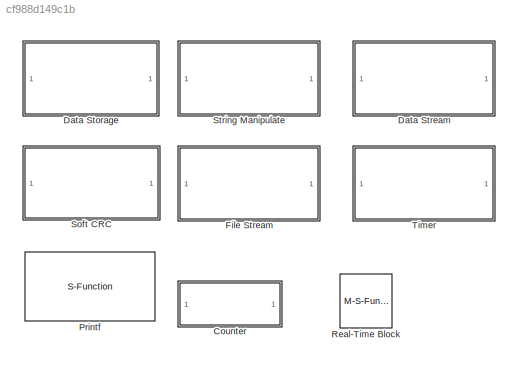
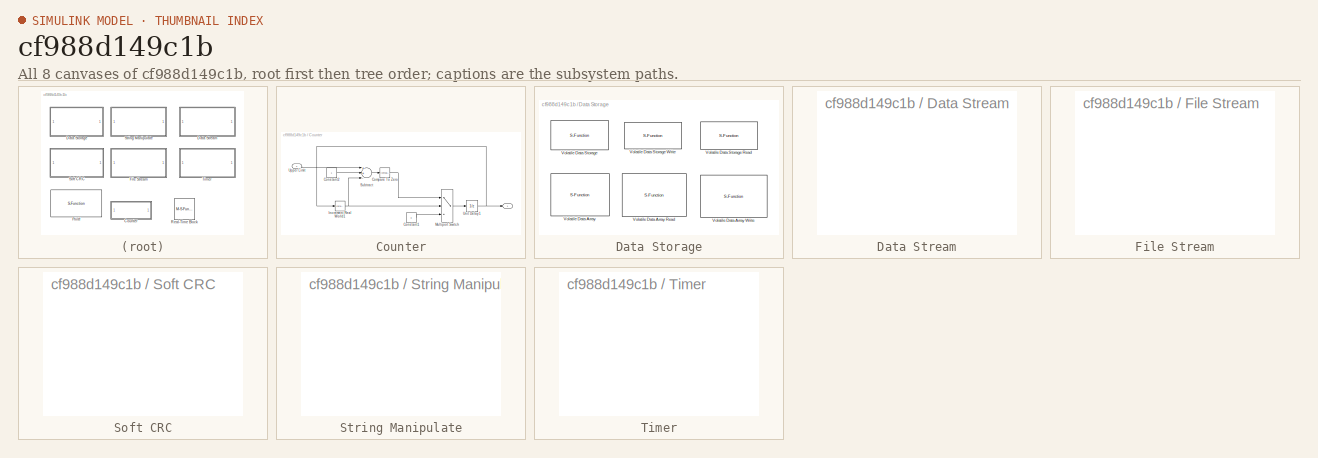
[diagram: thumbnail index - all 8 canvases of the model, root first then tree order]
MODEL slx_cf988d149c1b
KIND library
CONFIG AbsTol = auto
CONFIG FixedStep = auto
CONFIG MaxStep = auto
CONFIG MinStep = auto
CONFIG RelTol = 1e-3
CONFIG SampleTimeConstraint = Unconstrained
CONFIG Solver = ode45
CONFIG SolverMode = Auto
CONFIG SolverName = ode45
CONFIG StartTime = 0.0
CONFIG StopTime = 10.0
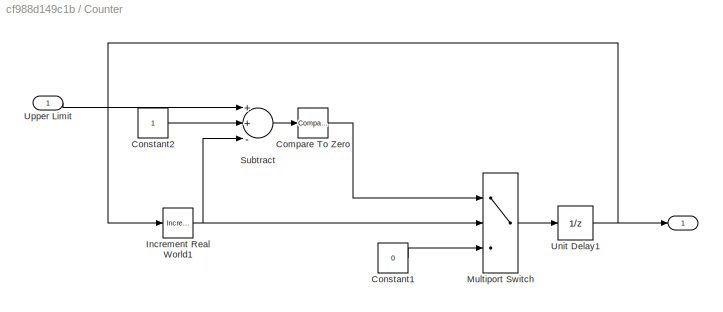
BLOCK [SubSystem] Counter
  Ports = [1, 1]
  RequestExecContextInheritance = off
  Variant = off
BLOCK [Outport] Counter/ 
  IconDisplay = Port number
BLOCK [Reference] Counter/Compare To Zero  REF=simulink/Logic and Bit
Operations/Compare
To Zero
  Ports = [1, 1]
  SourceBlock = simulink/Logic and Bit\nOperations/Compare\nTo Zero
  SourceType = Compare To Zero
BLOCK [Constant] Counter/Constant1
  Value = 0
BLOCK [Constant] Counter/Constant2
BLOCK [Reference] Counter/Increment Real World1  REF=simulink/Additional Math
& Discrete/Additional Math:
Increment - Decrement/Increment
Real World
  Ports = [1, 1]
  SourceBlock = simulink/Additional Math\n& Discrete/Additional Math:\nIncrement - Decrement/Increment\nReal World
  SourceType = Real World Value Increment
BLOCK [MultiPortSwitch] Counter/Multiport Switch
  DataPortOrder = Zero-based contiguous
  InputSameDT = off
  Inputs = 2
  Ports = [3, 1]
  SaturateOnIntegerOverflow = off
  zeroidx = on
BLOCK [Sum] Counter/Subtract
  InputSameDT = off
  Inputs = ++-
  OutDataTypeStr = Inherit: Inherit via internal rule
  Ports = [3, 1]
  SaturateOnIntegerOverflow = off
BLOCK [UnitDelay] Counter/Unit Delay1
  SampleTime = -1
BLOCK [Inport] Counter/Upper Limit
  IconDisplay = Port number
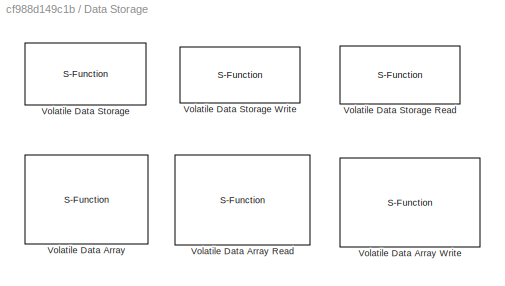
BLOCK [SubSystem] Data Storage
  Ports = []
  RequestExecContextInheritance = off
  Variant = off
BLOCK [S-Function] Data Storage/Volatile Data Array
  EnableBusSupport = off
  FunctionName = waijung_vdata_array
  Parameters = conf,inputporttype,inputportwidth,outputporttype,outputportwidth,optionstring,sampletime,blockid
  Ports = []
  SFunctionDeploymentMode = off
BLOCK [S-Function] Data Storage/Volatile Data Array Read
  EnableBusSupport = off
  FunctionName = waijung_vdata_array
  Parameters = conf,inputporttype,inputportwidth,outputporttype,outputportwidth,optionstring,sampletime,blockid
  Ports = [1, 1]
  SFunctionDeploymentMode = off
BLOCK [S-Function] Data Storage/Volatile Data Array Write
  EnableBusSupport = off
  FunctionName = waijung_vdata_array
  Parameters = conf,inputporttype,inputportwidth,outputporttype,outputportwidth,optionstring,sampletime,blockid
  Ports = [2]
  SFunctionDeploymentMode = off
BLOCK [S-Function] Data Storage/Volatile Data Storage
  EnableBusSupport = off
  FunctionName = waijung_vdata_storage
  Parameters = storagetype,storagename,initval,varname,buffersize,initvalstring,sampletime,sampletimestr,blockid,storagetypestr
  Ports = []
  SFunctionDeploymentMode = off
BLOCK [S-Function] Data Storage/Volatile Data Storage Read
  EnableBusSupport = off
  FunctionName = waijung_vdata_read
  Parameters = storagename,varname,sampletime,sampletimestr,blockid,storagetype,storagetypestr
  Ports = [0, 1]
  SFunctionDeploymentMode = off
BLOCK [S-Function] Data Storage/Volatile Data Storage Write
  EnableBusSupport = off
  FunctionName = waijung_vdata_write
  Parameters = storagename,varname,sampletime,sampletimestr,blockid,storagetype,storagetypestr
  Ports = [1]
  SFunctionDeploymentMode = off
BLOCK [SubSystem] Data Stream
  OpenFcn = waijung_data_stream_lib
  Ports = []
  RequestExecContextInheritance = off
  Variant = off
BLOCK [SubSystem] File Stream
  OpenFcn = waijung_filestream_lib
  Ports = []
  RequestExecContextInheritance = off
  Variant = off
BLOCK [S-Function] Printf
  EnableBusSupport = off
  FunctionName = waijung_printf
  Parameters = storagename,printfformat,formatcode,varname,sampletime,sampletimestr,blockid
  Ports = [2]
  SFunctionDeploymentMode = off
BLOCK [M-S-Function] Real-Time Block
  FunctionName = waijung_rtstep
  Ports = []
  Priority = 0
BLOCK [SubSystem] Soft CRC
  OpenFcn = waijung_crc_lib
  Ports = []
  RequestExecContextInheritance = off
  Variant = off
BLOCK [SubSystem] String Manipulate
  OpenFcn = waijung_string_manipulate
  Ports = []
  RequestExecContextInheritance = off
  Variant = off
BLOCK [SubSystem] Timer
  OpenFcn = waijung_systimer_lib
  Ports = []
  RequestExecContextInheritance = off
  Variant = off
LINE Counter/Compare To Zero:1 -> Counter/Multiport Switch:1
LINE Counter/Constant1:1 -> Counter/Multiport Switch:3
LINE Counter/Constant2:1 -> Counter/Subtract:2
NET Counter/Increment Real World1:1 -> Counter/Multiport Switch:2, Counter/Subtract:3
LINE Counter/Multiport Switch:1 -> Counter/Unit Delay1:1
LINE Counter/Subtract:1 -> Counter/Compare To Zero:1
NET Counter/Unit Delay1:1 -> Counter/ :1, Counter/Increment Real World1:1
LINE Counter/Upper Limit:1 -> Counter/Subtract:1
note: NET lines group one-source signal fan-out (src -> all destinations, sorted); 1:1 wires keep LINE
